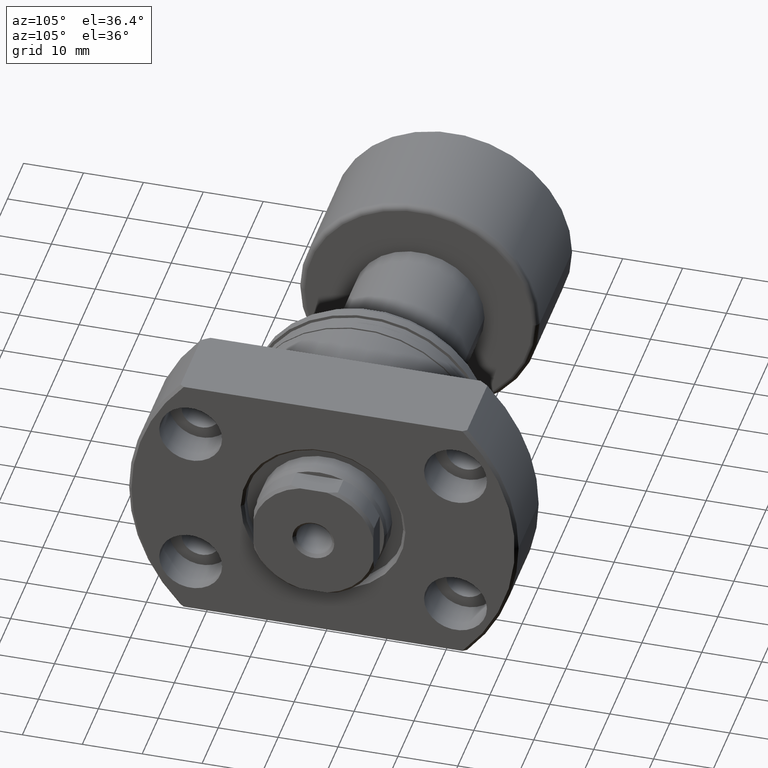
[diagram: clean part render]
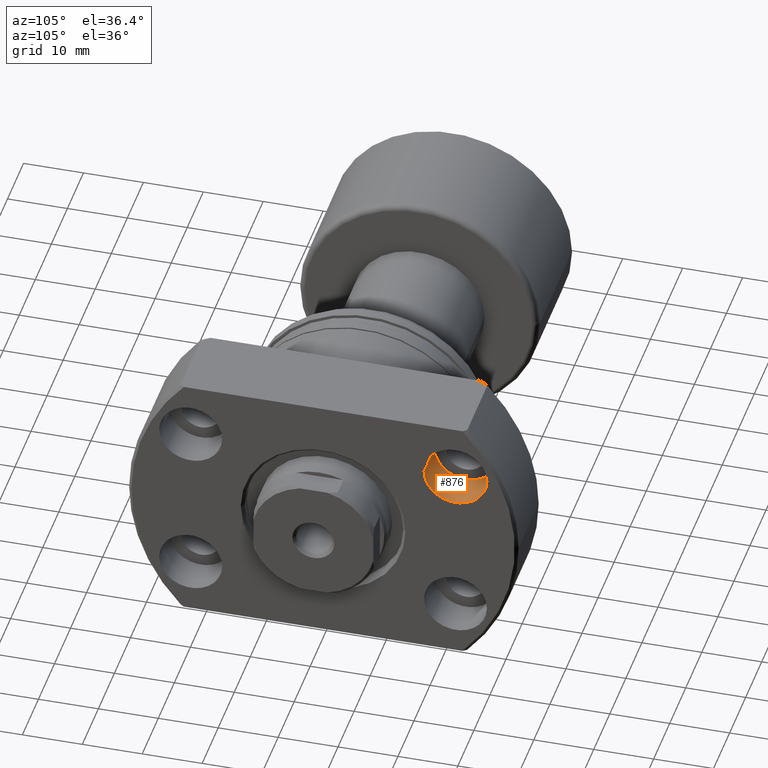
[diagram: same view with one face highlighted and labeled with its STEP entity id]
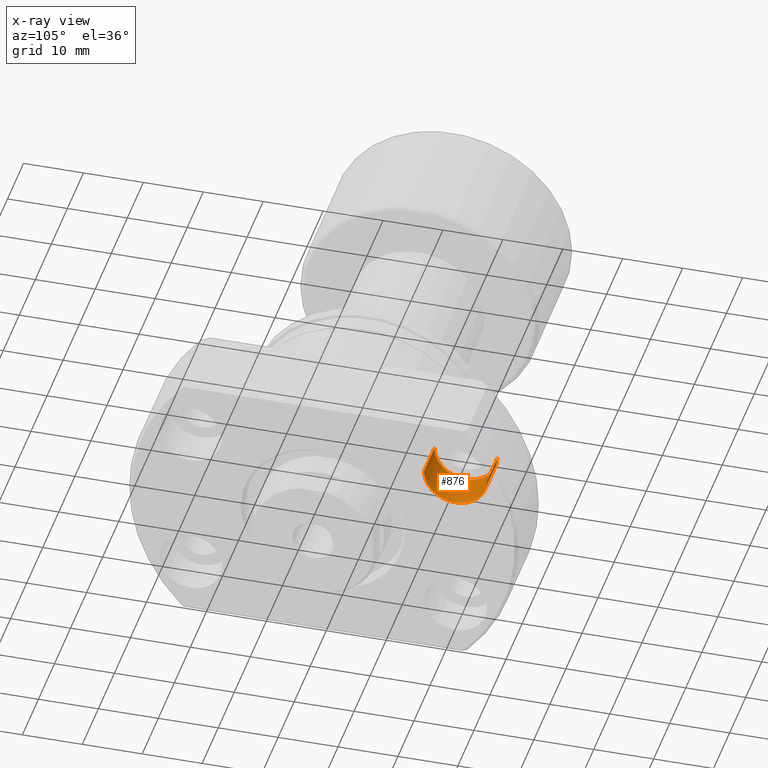
[diagram: x-ray of the same camera — body ghosted, the highlighted face saturated]
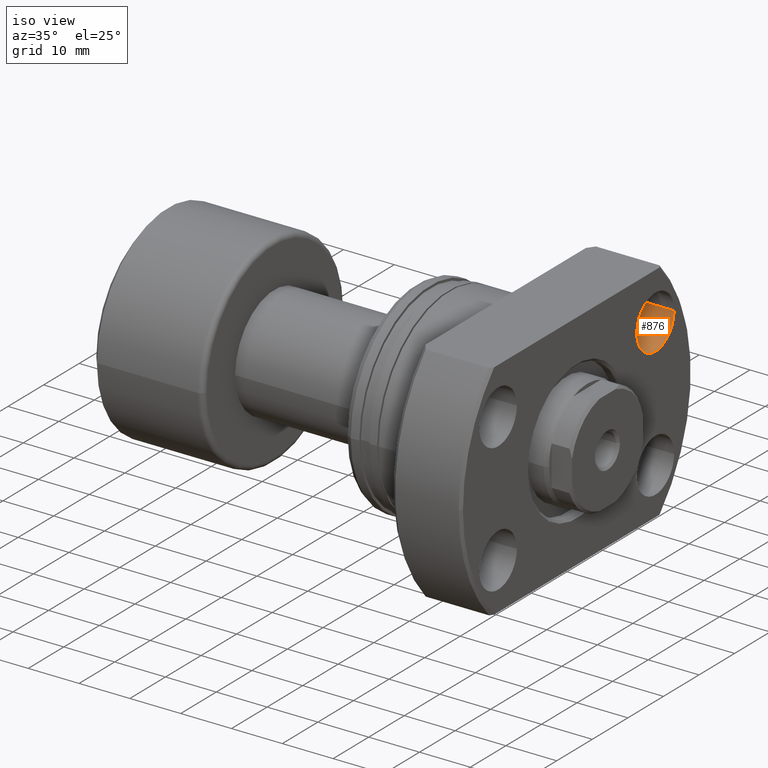
[diagram: same view with one face highlighted and labeled with its STEP entity id]
A machine part, auxiliary view. The second image highlights one B-rep face of the part: STEP entity #876.
The next image is the same camera in x-ray: the body ghosted, the highlighted face saturated — about 0% of this face is hidden behind the body in this view.
A second angle (iso view) of the same face is appended — the face is thin or edge-on in the first view.
In plain terms, the highlighted cylindrical surface (edge-blend (fillet) strip) has radius 5.25 mm, axis along (1, -0, 0).
Its self-contained STEP definition (entity closure, byte-faithful):
#4 = CARTESIAN_POINT ( 'NONE',  ( 31.50000000000063949, 22.09999999999909193, 12.74999999999999822 ) ) ;
#38 = ORIENTED_EDGE ( 'NONE', *, *, #828, .F. ) ;
#97 = DIRECTION ( 'NONE',  ( 1.000000000000000000, -2.886466111666351885E-14, 0.000000000000000000 ) ) ;
#150 = DIRECTION ( 'NONE',  ( 1.000000000000000000, -2.886466111666352516E-14, -0.000000000000000000 ) ) ;
#206 = FACE_OUTER_BOUND ( 'NONE', #3011, .T. ) ;
#367 = CARTESIAN_POINT ( 'NONE',  ( 25.00000000000048672, 16.84999999999928022, 12.74999999999999822 ) ) ;
#382 = AXIS2_PLACEMENT_3D ( 'NONE', #2361, #97, #1090 ) ;
#443 = CYLINDRICAL_SURFACE ( 'NONE', #2718, 5.250000000000000888 ) ;
#494 = VERTEX_POINT ( 'NONE', #2930 ) ;
#590 = VERTEX_POINT ( 'NONE', #2500 ) ;
#599 = VECTOR ( 'NONE', #150, 1000.000000000000000 ) ;
#629 = LINE ( 'NONE', #1616, #599 ) ;
#713 = CARTESIAN_POINT ( 'NONE',  ( 31.50000000000048672, 16.84999999999909193, 12.74999999999999822 ) ) ;
#760 = ORIENTED_EDGE ( 'NONE', *, *, #2000, .T. ) ;
#828 = EDGE_CURVE ( 'NONE', #494, #2878, #2093, .T. ) ;
#861 = DIRECTION ( 'NONE',  ( 1.000000000000000000, -2.886466111666352516E-14, -0.000000000000000000 ) ) ;
#876 = ADVANCED_FACE ( 'NONE', ( #206 ), #443, .F. ) ;
#885 = ORIENTED_EDGE ( 'NONE', *, *, #2817, .F. ) ;
#1090 = DIRECTION ( 'NONE',  ( 2.907726969256361977E-14, 1.000000000000000000, 0.000000000000000000 ) ) ;
#1157 = CIRCLE ( 'NONE', #2967, 5.250000000000000888 ) ;
#1186 = DIRECTION ( 'NONE',  ( 2.907726969256361977E-14, 1.000000000000000000, 0.000000000000000000 ) ) ;
#1303 = VERTEX_POINT ( 'NONE', #713 ) ;
#1503 = DIRECTION ( 'NONE',  ( 1.000000000000000000, -2.886466111666351885E-14, 0.000000000000000000 ) ) ;
#1616 = CARTESIAN_POINT ( 'NONE',  ( 25.00000000000079226, 27.34999999999928022, 12.74999999999999822 ) ) ;
#1829 = ORIENTED_EDGE ( 'NONE', *, *, #2770, .T. ) ;
#2000 = EDGE_CURVE ( 'NONE', #1303, #590, #1157, .T. ) ;
#2093 = CIRCLE ( 'NONE', #382, 5.250000000000000888 ) ;
#2194 = CARTESIAN_POINT ( 'NONE',  ( 25.00000000000079226, 27.34999999999928022, 12.74999999999999822 ) ) ;
#2361 = CARTESIAN_POINT ( 'NONE',  ( 25.00000000000063949, 22.09999999999928022, 12.74999999999999822 ) ) ;
#2421 = VECTOR ( 'NONE', #861, 1000.000000000000000 ) ;
#2500 = CARTESIAN_POINT ( 'NONE',  ( 31.50000000000079226, 27.34999999999909548, 12.74999999999999822 ) ) ;
#2502 = DIRECTION ( 'NONE',  ( 2.907726969256361977E-14, 1.000000000000000000, 0.000000000000000000 ) ) ;
#2546 = LINE ( 'NONE', #367, #2421 ) ;
#2718 = AXIS2_PLACEMENT_3D ( 'NONE', #2855, #2924, #1186 ) ;
#2770 = EDGE_CURVE ( 'NONE', #494, #1303, #2546, .T. ) ;
#2817 = EDGE_CURVE ( 'NONE', #2878, #590, #629, .T. ) ;
#2855 = CARTESIAN_POINT ( 'NONE',  ( 25.00000000000063949, 22.09999999999928022, 12.74999999999999822 ) ) ;
#2878 = VERTEX_POINT ( 'NONE', #2194 ) ;
#2924 = DIRECTION ( 'NONE',  ( 1.000000000000000000, -2.886466111666352516E-14, -0.000000000000000000 ) ) ;
#2930 = CARTESIAN_POINT ( 'NONE',  ( 25.00000000000048672, 16.84999999999928022, 12.74999999999999822 ) ) ;
#2967 = AXIS2_PLACEMENT_3D ( 'NONE', #4, #1503, #2502 ) ;
#3011 = EDGE_LOOP ( 'NONE', ( #38, #1829, #760, #885 ) ) ;